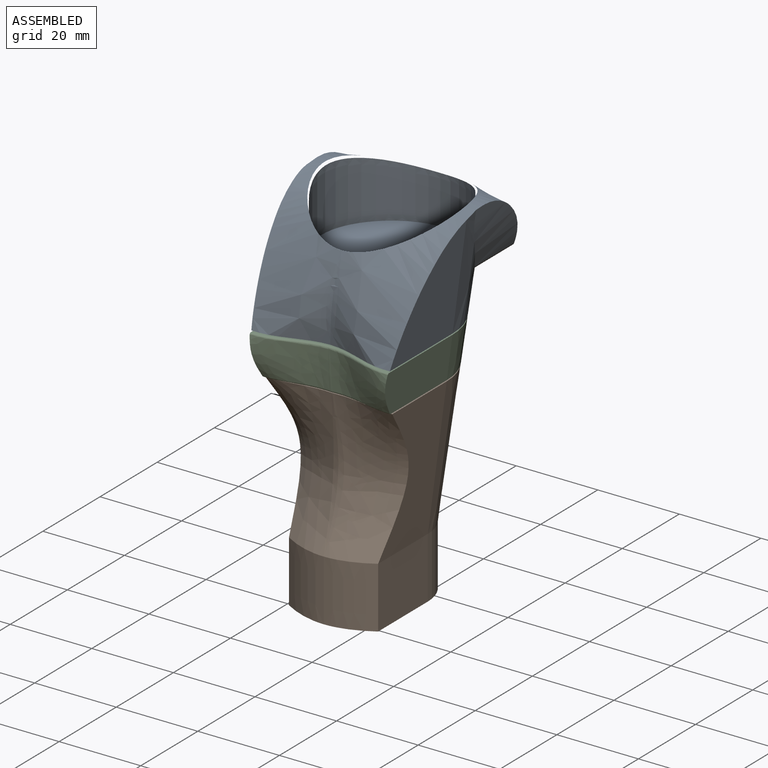
[diagram: assembled view]
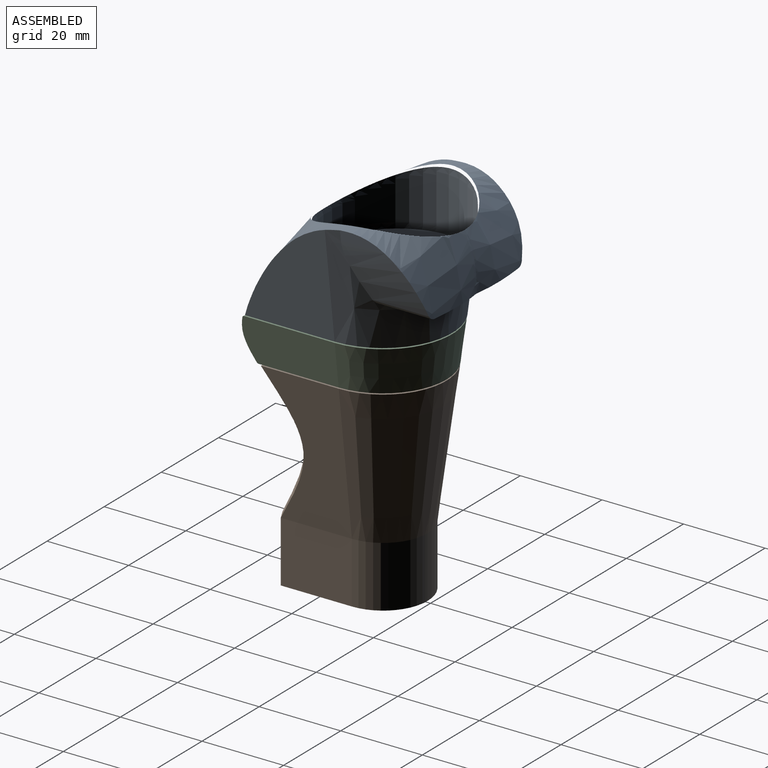
[diagram: assembled view, second angle]
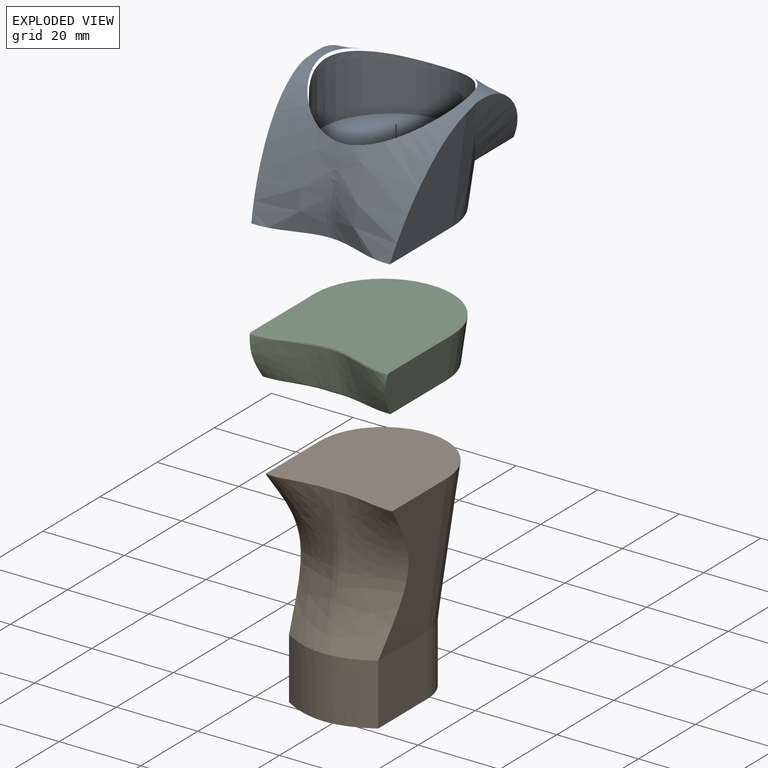
[diagram: exploded view]
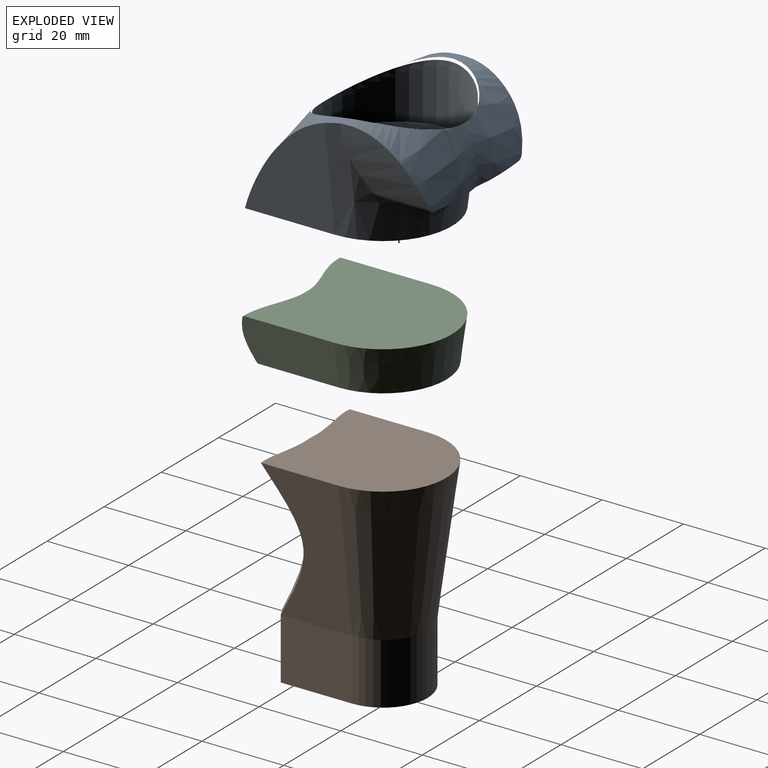
[diagram: exploded view, second angle]
ASSEMBLY  parts=3 mates=2
PART A: 20 faces, bbox 65.5x47.2x41 mm
  f0: bspline ~40.54x39.97mm, area 485.8mm2, adj f1,f4,f6,f8,f14,f15,f19
  f1: bspline ~36.25x33.16mm, area 344.5mm2, adj f0,f7,f8,f10,f13,f15,f18
  f2: bspline ~36.25x33.16mm, area 344.5mm2, adj f3,f7,f9,f11,f12,f15,f18
  f3: bspline ~40.54x39.97mm, area 485.6mm2, adj f2,f5,f6,f9,f14,f15,f19
  f4: plane 26.06x21.97mm, normal (0.99,0,-0.13), area 374.7mm2, adj f0,f6,f14
  f5: plane 26.06x21.97mm, normal (-0.99,0,-0.13), area 374.7mm2, adj f3,f6,f14
  f6: cone r=20.94mm half-angle=7.5deg, axis (0,0,1), area 783.3mm2, adj f0,f3,f4,f5,f7,f8,f9,f10
  f7: plane 29.75x12.79mm, normal (0,0,-1), area 209.2mm2, adj f1,f2,f6,f12,f13,f18
  f8: extruded ~10.78x2.57mm, area 20.9mm2, adj f0,f1,f6,f10
  f9: extruded ~10.78x2.57mm, area 20.9mm2, adj f2,f3,f6,f11
  f10: cylinder r=49.7mm len=19.04mm, axis (0,-1,0), area 167.5mm2, adj f1,f6,f8,f13
  f11: cylinder r=49.7mm len=19.04mm, axis (0,-1,0), area 167.5mm2, adj f2,f6,f9,f12
  f12: cylinder r=1.7mm len=14.14mm, axis (0,-1,0), area 25.5mm2, adj f2,f6,f7,f11
  f13: cylinder r=1.7mm len=14.14mm, axis (0,-1,0), area 25.5mm2, adj f1,f6,f7,f10
  f14: plane 39x33.98mm, normal (0,0,-1), area 1145.1mm2, adj f0,f3,f4,f5,f6,f19
  f15: bspline ~35.23x35.16mm, area 46.9mm2, adj f0,f1,f2,f3,f17,f18,f19
  f16: plane 34.86x34.5mm, normal (0,0,1), area 891.5mm2, adj f17
  f17: extruded ~34.26x33.89mm, area 1550.5mm2, adj f15,f16
  f18: bspline ~15.22x3.25mm, area 18mm2, adj f1,f2,f7,f15
  f19: bspline ~19.97x4.14mm, area 32.5mm2, adj f0,f3,f14,f15
PART B: 15 faces, bbox 46.9x38.3x58.1 mm
  f0: cone r=20.94mm half-angle=7.5deg, axis (0,0,1), area 1467.6mm2, adj f3,f4,f5,f6,f11
  f1: bspline ~44.38x32.85mm, area 481mm2, adj f3,f5,f12,f14
  f2: bspline ~44.38x32.85mm, area 481mm2, adj f4,f5,f8,f14
  f3: plane 35.03x19.1mm, normal (-0.99,0,-0.13), area 470.4mm2, adj f0,f1,f5,f10
  f4: plane 35.03x19.1mm, normal (0.99,0,-0.13), area 470.4mm2, adj f0,f2,f5,f7
  f5: plane 35.28x31.67mm, normal (0,0,1), area 948.9mm2, adj f0,f1,f2,f3,f4,f14
  f6: cylinder r=10.93mm len=15mm, axis (0,0,1), area 257.5mm2, adj f0,f7,f9,f11
  f7: plane 17.44x15mm, normal (1,0,0), area 261.6mm2, adj f4,f6,f8,f9
  f8: extruded ~15x10.93mm, area 174.3mm2, adj f2,f7,f9,f12
  f9: plane 31.8x10.93mm, normal (0,0,-1), area 309.2mm2, adj f6,f7,f8,f13
  f10: plane 17.44x15mm, normal (-1,0,0), area 261.6mm2, adj f3,f11,f12,f13
  f11: extruded ~15x10.93mm, area 257.5mm2, adj f0,f6,f10,f13
  f12: extruded ~15x10.93mm, area 174.3mm2, adj f1,f8,f10,f13
  f13: plane 31.8x10.93mm, normal (0,0,-1), area 309.2mm2, adj f9,f10,f11,f12
  f14: bspline ~35.96x5.3mm, area 62.4mm2, adj f1,f2,f5
PART C: 14 faces, bbox 54.9x41.1x28.3 mm
  f0: plane 35.23x31.16mm, normal (0,0,-1), area 960.5mm2, adj f4,f5,f6,f9,f10,f11
  f1: plane 39.14x33.9mm, normal (0,0,1), area 1140.7mm2, adj f4,f5,f6,f7,f8,f13
  f2: offset ~33.96x28.28mm, area 162.6mm2, adj f4,f8,f10,f12
  f3: offset ~33.96x28.28mm, area 162.6mm2, adj f5,f7,f9,f12
  f4: plane 23.81x11.25mm, normal (0.99,0,-0.13), area 231.9mm2, adj f0,f1,f2,f6,f8,f10
  f5: plane 23.81x11.25mm, normal (-0.99,0,-0.13), area 231.9mm2, adj f0,f1,f3,f6,f7,f9
  f6: cone r=20.94mm half-angle=7.5deg, axis (0,0,1), area 535.9mm2, adj f0,f1,f4,f5
  f7: bspline ~19.11x4.21mm, area 13.9mm2, adj f1,f3,f5,f13
  f8: bspline ~19.12x4.21mm, area 13.9mm2, adj f1,f2,f4,f13
  f9: bspline ~18.81x2.33mm, area 9.7mm2, adj f0,f3,f5,f11
  f10: bspline ~18.83x2.33mm, area 9.7mm2, adj f0,f2,f4,f11
  f11: bspline ~1.81x0.61mm, area 0.5mm2, adj f0,f9,f10,f12
  f12: bspline ~10.93x0.8mm, area 5.8mm2, adj f2,f3,f11,f13
  f13: bspline ~1.82x0.63mm, area 0.1mm2, adj f1,f7,f8,f12
PLACE A at identity
PLACE B at identity
PLACE C at identity
MATE fastened A.f6 <-> C.f6  axis (0,0,-1) through (0,-3.61,59.27)mm
MATE fastened B.f0 <-> C.f6  axis (0,0,1) through (0,-3.61,48.27)mm
